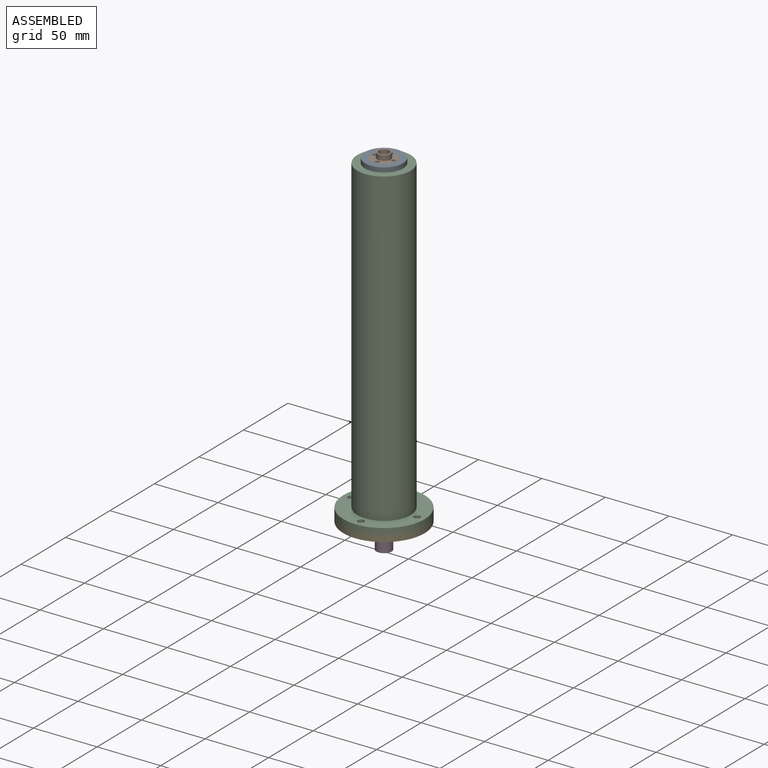
[diagram: assembled view]
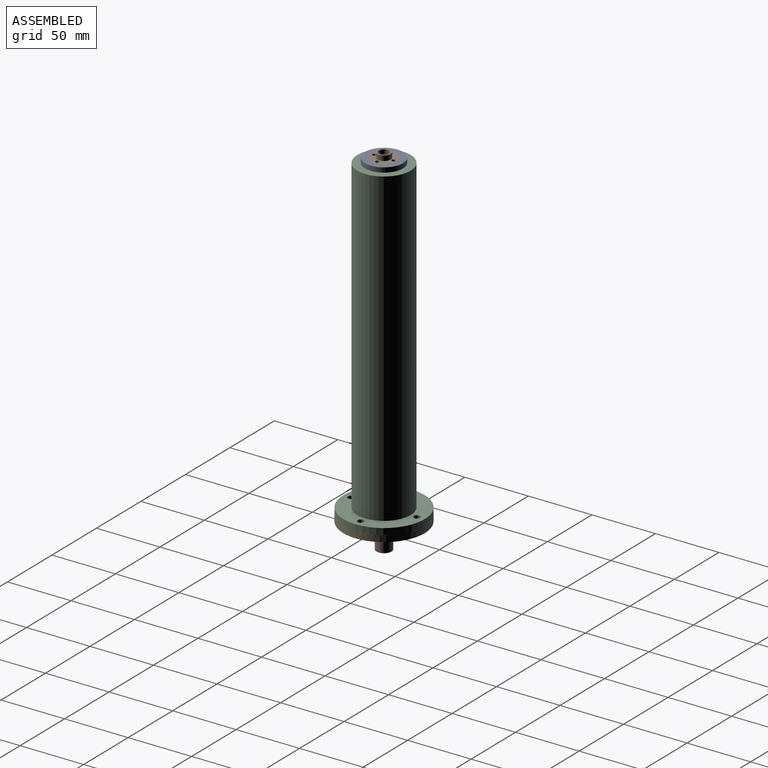
[diagram: assembled view, second angle]
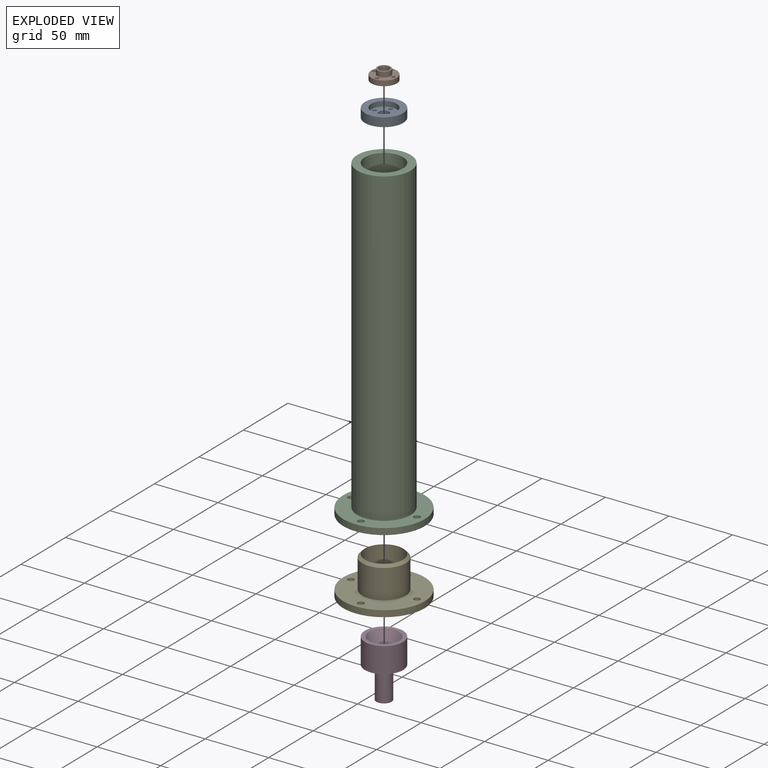
[diagram: exploded view]
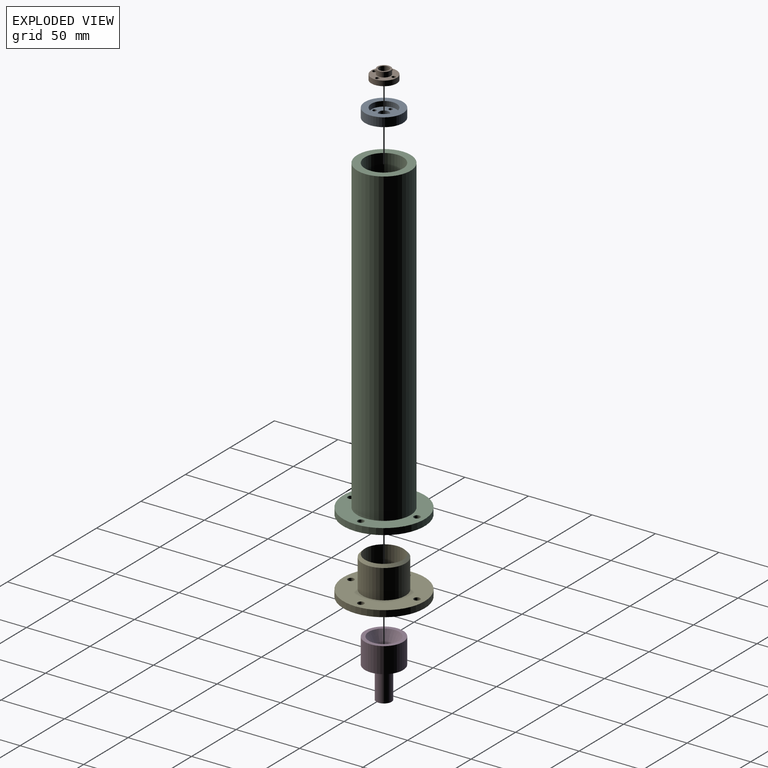
[diagram: exploded view, second angle]
ASSEMBLY  parts=5 mates=4
PART A: 10 faces, bbox 30x30x7 mm
  f0: plane 20x20mm, normal (0,0,1), area 235.6mm2, adj f1,f2,f3,f4,f5,f8
  f1: cylinder r=1.5mm len=3mm, axis (0,0,-1), area 28.3mm2, adj f0,f7
  f2: cylinder r=1.5mm len=3mm, axis (0,0,-1), area 28.3mm2, adj f0,f7
  f3: cylinder r=1.5mm len=3mm, axis (0,0,-1), area 28.3mm2, adj f0,f7
  f4: cylinder r=4mm len=8mm, axis (0,0,-1), area 75.4mm2, adj f0,f7
  f5: cylinder r=1.5mm len=3mm, axis (0,0,-1), area 28.3mm2, adj f0,f7
  f6: cylinder r=15mm len=30mm, axis (0,0,-1), area 659.7mm2, adj f7,f9
  f7: plane 30x30mm, normal (0,0,-1), area 628.3mm2, adj f1,f2,f3,f4,f5,f6
  f8: cylinder r=10mm len=20mm, axis (0,0,-1), area 251.3mm2, adj f0,f9
  f9: plane 30x30mm, normal (0,0,1), area 392.7mm2, adj f6,f8
PART B: 10 faces, bbox 20x20x8 mm
  f0: cylinder r=4mm len=8mm, axis (0,0,-1), area 201.1mm2, adj f3,f5
  f1: cylinder r=10mm len=20mm, axis (0,0,-1), area 251.3mm2, adj f2,f3
  f2: plane 20x20mm, normal (0,0,1), area 199.3mm2, adj f1,f4,f6,f7,f8,f9
  f3: plane 20x20mm, normal (0,0,-1), area 235.6mm2, adj f0,f1,f6,f7,f8,f9
  f4: cylinder r=5.25mm len=10.5mm, axis (0,0,-1), area 131.9mm2, adj f2,f5
  f5: plane 10.5x10.5mm, normal (0,0,1), area 36.3mm2, adj f0,f4
  f6: cylinder r=1.5mm len=4mm, axis (0,0,1), area 37.7mm2, adj f2,f3
  f7: cylinder r=1.5mm len=4mm, axis (0,0,1), area 37.7mm2, adj f2,f3
  f8: cylinder r=1.5mm len=4mm, axis (0,0,1), area 37.7mm2, adj f2,f3
  f9: cylinder r=1.5mm len=4mm, axis (0,0,1), area 37.7mm2, adj f2,f3
PART C: 12 faces, bbox 64x64x250 mm
  f0: cylinder r=15mm len=225mm, axis (0,0,-1), area 21205.8mm2, adj f2,f11
  f1: cylinder r=21mm len=245mm, axis (0,0,-1), area 32327mm2, adj f2,f9
  f2: plane 42x42mm, normal (0,0,1), area 678.6mm2, adj f0,f1
  f3: plane 64x64mm, normal (0,0,-1), area 2230.5mm2, adj f4,f5,f6,f7,f8,f10
  f4: cylinder r=2.5mm len=5mm, axis (0,0,-1), area 78.5mm2, adj f3,f9
  f5: cylinder r=2.5mm len=5mm, axis (0,0,-1), area 78.5mm2, adj f3,f9
  f6: cylinder r=2.5mm len=5mm, axis (0,0,-1), area 78.5mm2, adj f3,f9
  f7: cylinder r=2.5mm len=5mm, axis (0,0,-1), area 78.5mm2, adj f3,f9
  f8: cylinder r=32mm len=64mm, axis (0,0,-1), area 1005.3mm2, adj f3,f9
  f9: plane 64x64mm, normal (0,0,1), area 1753mm2, adj f1,f4,f5,f6,f7,f8
  f10: cylinder r=17mm len=34mm, axis (0,0,-1), area 2456.7mm2, adj f3,f11
  f11: cone r=15mm half-angle=45deg, axis (0,0,-1), area 284.3mm2, adj f0,f10
PART D: 7 faces, bbox 30x30x45 mm
  f0: cylinder r=4mm len=30mm, axis (0,0,-1), area 754mm2, adj f4,f6
  f1: cylinder r=15mm len=30mm, axis (0,0,-1), area 1885mm2, adj f2,f3
  f2: plane 30x30mm, normal (0,0,1), area 254.5mm2, adj f1,f4
  f3: plane 30x30mm, normal (0,0,-1), area 593.8mm2, adj f1,f5
  f4: cone r=4mm half-angle=28.1deg, axis (0,0,1), area 854.5mm2, adj f0,f2
  f5: cylinder r=6mm len=25mm, axis (0,0,1), area 942.5mm2, adj f3,f6
  f6: plane 12x12mm, normal (0,0,-1), area 62.8mm2, adj f0,f5
PART E: 12 faces, bbox 64x64x30 mm
  f0: cylinder r=15mm len=30mm, axis (0,0,-1), area 2356.2mm2, adj f9,f10
  f1: cylinder r=32mm len=64mm, axis (0,0,-1), area 1005.3mm2, adj f2,f3
  f2: plane 64x64mm, normal (0,0,1), area 2230.5mm2, adj f1,f4,f5,f6,f7,f8
  f3: plane 64x64mm, normal (0,0,-1), area 3025.4mm2, adj f1,f4,f5,f6,f7,f11
  f4: cylinder r=2.5mm len=5mm, axis (0,0,1), area 78.5mm2, adj f2,f3
  f5: cylinder r=2.5mm len=5mm, axis (0,0,1), area 78.5mm2, adj f2,f3
  f6: cylinder r=2.5mm len=5mm, axis (0,0,1), area 78.5mm2, adj f2,f3
  f7: cylinder r=2.5mm len=5mm, axis (0,0,1), area 78.5mm2, adj f2,f3
  f8: cylinder r=17mm len=34mm, axis (0,0,-1), area 2456.7mm2, adj f2,f9
  f9: cone r=15mm half-angle=45deg, axis (0,0,-1), area 284.3mm2, adj f0,f8
  f10: plane 30x30mm, normal (0,0,1), area 593.8mm2, adj f0,f11
  f11: cylinder r=6mm len=12mm, axis (0,0,-1), area 188.5mm2, adj f3,f10
PLACE A t=(15.63,7.4,-0.23)mm
PLACE B t=(15.63,7.4,2.77)mm
PLACE C t=(15.63,7.4,-246.96)mm fixed
PLACE D t=(15.63,7.4,-246.96)mm
PLACE E t=(15.63,7.4,-251.96)mm
MATE slider C.f0 <-> A.f4  axis (0,0,1) through (15.63,7.4,3.04)mm
MATE fastened E.f0 <-> C.f0  axis (0,0,1) through (15.63,7.4,-246.96)mm
MATE fastened E.f0 <-> D.f0  axis (0,0,1) through (15.63,7.4,-246.96)mm
MATE fastened A.f4 <-> B.f0  axis (0,0,-1) through (15.63,7.4,2.77)mm
